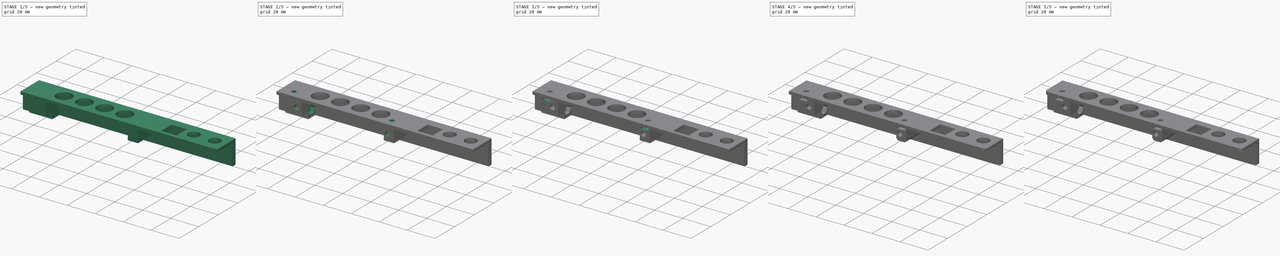
[diagram: build sequence overview — one tinted view per stage of 5, left to right]
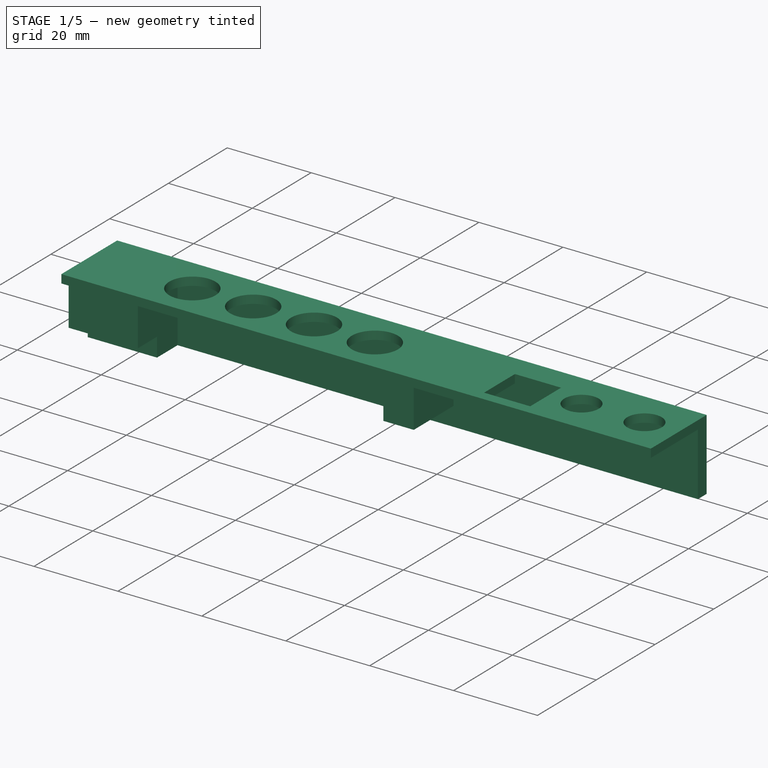
[diagram: stage 1 of 5 — iso view after this stage's code; geometry added in this stage tinted green]
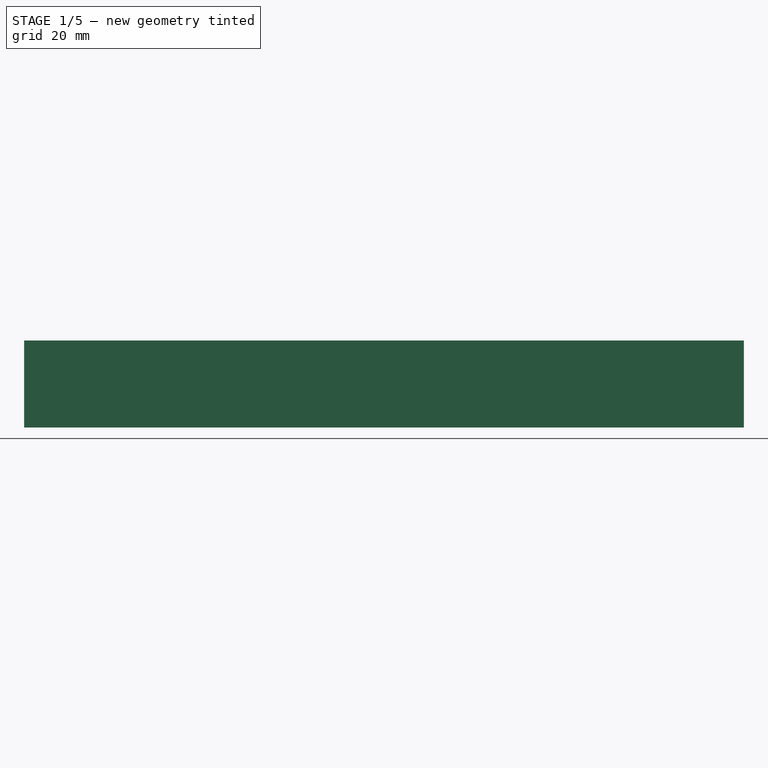
[diagram: stage 1 of 5 — front view after this stage's code; geometry added in this stage tinted green]
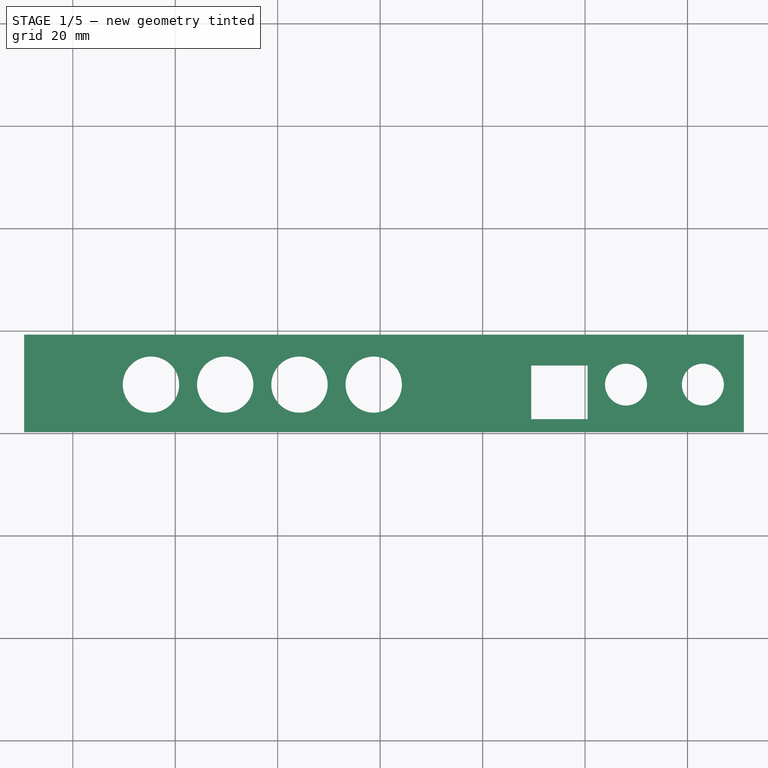
[diagram: stage 1 of 5 — top view after this stage's code; geometry added in this stage tinted green]
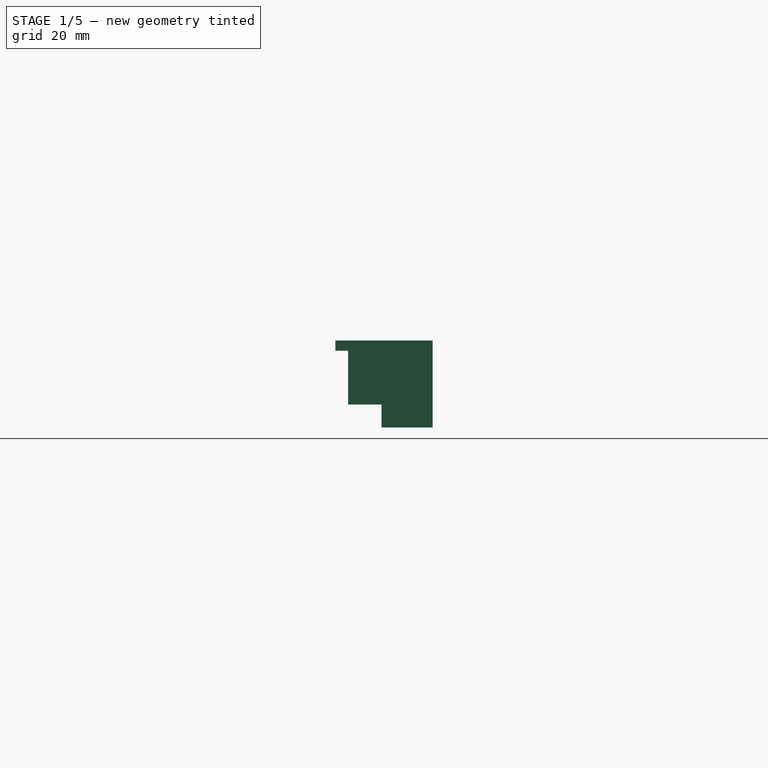
[diagram: stage 1 of 5 — right view after this stage's code; geometry added in this stage tinted green]
FCSTD DOCUMENT  (FreeCAD 0.16R6712 (Git))
Label: juli-bracket
License: All rights reserved
LicenseURL: http://en.wikipedia.org/wiki/All_rights_reserved
objects: Sketcher::SketchObject×12, PartDesign::Pocket×8, PartDesign::Fillet×8, PartDesign::Pad×4, PartDesign::Chamfer×2
note: 46 computed .brp shape members not serialized (recipe doc carries the construction recipe); baked Part::Feature solids carry a one-line shape summary decoded from their .brp

FEATURE [Sketcher::SketchObject] Sketch  label="Holes - sketch"
  sketch-geometry (22):
    g0: LineSegment StartX=0 StartY=19 StartZ=0 EndX=131 EndY=19 EndZ=0
    g1: LineSegment StartX=131 StartY=19 StartZ=0 EndX=131 EndY=0 EndZ=0
    g2: LineSegment StartX=131 StartY=0 StartZ=0 EndX=0 EndY=0 EndZ=0
    g3: LineSegment [constr] StartX=0 StartY=0 StartZ=0 EndX=0 EndY=19 EndZ=0
    g4: Circle CenterX=15.25 CenterY=9.25 CenterZ=0 NormalX=0 NormalY=0 NormalZ=1 Radius=5.5
    g5: Circle CenterX=29.75 CenterY=9.25 CenterZ=0 NormalX=0 NormalY=0 NormalZ=1 Radius=5.5
    g6: Circle CenterX=44.25 CenterY=9.25 CenterZ=0 NormalX=0 NormalY=0 NormalZ=1 Radius=5.5
    g7: Circle CenterX=58.75 CenterY=9.25 CenterZ=0 NormalX=0 NormalY=0 NormalZ=1 Radius=5.5
    g8: Circle CenterX=108 CenterY=9.25 CenterZ=0 NormalX=0 NormalY=0 NormalZ=1 Radius=4.1
    g9: Circle CenterX=123 CenterY=9.25 CenterZ=0 NormalX=0 NormalY=0 NormalZ=1 Radius=4.1
    g10: LineSegment [constr] StartX=58.75 StartY=9.25 StartZ=0 EndX=108 EndY=9.25 EndZ=0
    g11: LineSegment [constr] StartX=108 StartY=9.25 StartZ=0 EndX=123 EndY=9.25 EndZ=0
    g12: LineSegment StartX=89.5 StartY=13 StartZ=0 EndX=100.5 EndY=13 EndZ=0
    g13: LineSegment StartX=100.5 StartY=13 StartZ=0 EndX=100.5 EndY=2.5 EndZ=0
    g14: LineSegment StartX=100.5 StartY=2.5 StartZ=0 EndX=89.5 EndY=2.5 EndZ=0
    g15: LineSegment StartX=89.5 StartY=2.5 StartZ=0 EndX=89.5 EndY=13 EndZ=0
    g16: LineSegment [constr] StartX=15.25 StartY=9.25 StartZ=0 EndX=29.75 EndY=9.25 EndZ=0
    g17: LineSegment [constr] StartX=29.75 StartY=9.25 StartZ=0 EndX=44.25 EndY=9.25 EndZ=0
    g18: LineSegment [constr] StartX=44.25 StartY=9.25 StartZ=0 EndX=58.75 EndY=9.25 EndZ=0
    g19: LineSegment StartX=0 StartY=19 StartZ=0 EndX=-9.5 EndY=19 EndZ=0
    g20: LineSegment StartX=0 StartY=0 StartZ=0 EndX=-9.5 EndY=0 EndZ=0
    g21: LineSegment StartX=-9.5 StartY=19 StartZ=0 EndX=-9.5 EndY=0 EndZ=0
  constraints (59):
    c: Coincident(g0,g1)
    c: Coincident(g1,g2)
    c: Coincident(g2,g3)
    c: Coincident(g3,g0)
    c: Horizontal(g0)
    c: Horizontal(g2)
    c: Vertical(g1)
    c: Vertical(g3)
    c: DistanceX(g0) = 0
    c: DistanceY(g0) = 19
    c: DistanceY(g2) = 0
    c: DistanceX(g0) = 131
    c: Equal(g4,g5)
    c: Equal(g4,g6)
    c: Equal(g4,g7)
    c: Coincident(g10,g7)
    c: Coincident(g10,g8)
    c: Horizontal(g10)
    c: Coincident(g11,g8)
    c: Coincident(g11,g9)
    c: Horizontal(g11)
    c: DistanceX(g4) = 15.25
    c: DistanceY(g4) = 9.25
    c: DistanceX(g4,g5) = 14.5
    c: DistanceX(g5,g6) = 14.5
    c: DistanceX(g6,g7) = 14.5
    c: DistanceX(g8,g9) = 15
    c: DistanceX(g9,g0) = 8
    c: Coincident(g12,g13)
    c: Coincident(g13,g14)
    c: Coincident(g14,g15)
    c: Coincident(g15,g12)
    c: Horizontal(g12)
    c: Horizontal(g14)
    c: Vertical(g13)
    c: Vertical(g15)
    c: DistanceX(g14) = 89.5
    c: DistanceY(g14) = 2.5
    c: DistanceX(g14,g13) = 11
    c: DistanceY(g13,g12) = 10.5
    c: Coincident(g16,g4)
    c: Coincident(g16,g5)
    c: Horizontal(g16)
    c: Coincident(g17,g5)
    c: Coincident(g17,g6)
    c: Horizontal(g17)
    c: Coincident(g18,g6)
    c: Coincident(g18,g7)
    c: Horizontal(g18)
    c: Coincident(g19,g0)
    c: Horizontal(g19)
    c: Coincident(g20,g-1)
    c: PointOnObject(g20,g-1)
    c: Coincident(g21,g19)
    c: Coincident(g21,g20)
    c: Vertical(g21)
    c: Distance(g19) = 9.5
    c: Radius(g8) = 4.1
    c: Radius(g9) = 4.1
FEATURE [PartDesign::Pad] Pad  label="Plate 2mm"
  Length = 2
  Length2 = 100
  Sketch = -> Sketch
  Type = 0
FEATURE [Sketcher::SketchObject] Sketch001
  ExternalGeometry = -> [Pad]
  Placement = pos=(0,0,2) rot=(0,0,1;0rad)
  Support = -> Pad [Face18]
  sketch-geometry (14):
    g0: LineSegment StartX=7 StartY=19 StartZ=0 EndX=7 EndY=2.5 EndZ=0
    g1: LineSegment StartX=7 StartY=2.5 StartZ=0 EndX=-9.5 EndY=2.5 EndZ=0
    g2: LineSegment StartX=-9.5 StartY=19 StartZ=0 EndX=-9.5 EndY=2.5 EndZ=0
    g3: LineSegment StartX=-9.5 StartY=19 StartZ=0 EndX=7 EndY=19 EndZ=0
    g4: LineSegment StartX=63.25 StartY=19 StartZ=0 EndX=72.75 EndY=19 EndZ=0
    g5: LineSegment StartX=72.75 StartY=19 StartZ=0 EndX=72.75 EndY=2.5 EndZ=0
    g6: LineSegment StartX=72.75 StartY=2.5 StartZ=0 EndX=65.5 EndY=2.5 EndZ=0
    g7: LineSegment [constr] StartX=7 StartY=2.5 StartZ=0 EndX=65.5 EndY=2.5 EndZ=0
    g8: LineSegment [constr] StartX=7 StartY=19 StartZ=0 EndX=63.25 EndY=19 EndZ=0
    g9: LineSegment [constr] StartX=68 StartY=25.7107 StartZ=0 EndX=68 EndY=-3.36889 EndZ=0
    g10: LineSegment [constr] StartX=3 StartY=22.9763 StartZ=0 EndX=3 EndY=-10.7359 EndZ=0
    g11: LineSegment StartX=63.25 StartY=19 StartZ=0 EndX=63.25 EndY=16 EndZ=0
    g12: LineSegment StartX=63.25 StartY=16 StartZ=0 EndX=65.5 EndY=16 EndZ=0
    g13: LineSegment StartX=65.5 StartY=16 StartZ=0 EndX=65.5 EndY=2.5 EndZ=0
  constraints (38):
    c: Vertical(g0)
    c: Coincident(g1,g0)
    c: PointOnObject(g1,g-3)
    c: Horizontal(g1)
    c: Coincident(g2,g1)
    c: Coincident(g3,g2)
    c: Coincident(g3,g0)
    c: Horizontal(g3)
    c: DistanceY(g-3,g1) = 2.5
    c: Coincident(g4,g5)
    c: Coincident(g5,g6)
    c: Horizontal(g4)
    c: Horizontal(g6)
    c: Vertical(g5)
    c: Coincident(g7,g0)
    c: Coincident(g7,g6)
    c: Horizontal(g7)
    c: Coincident(g8,g0)
    c: Coincident(g8,g4)
    c: Horizontal(g8)
    c: Vertical(g9)
    c: Vertical(g10)
    c: DistanceX(g-1,g10) = 3
    c: DistanceX(g10,g0) = 4
    c: DistanceX(g10,g9) = 65
    c: DistanceX(g6,g9) = 2.5
    c: DistanceX(g9,g5) = 4.75
    c: DistanceY(g0,g-3) = 0
    c: Coincident(g4,g11)
    c: Vertical(g11)
    c: Coincident(g11,g12)
    c: Horizontal(g12)
    c: Coincident(g12,g13)
    c: Coincident(g13,g6)
    c: Vertical(g13)
    c: Distance(g13) = 13.5
    c: DistanceX(g4,g9) = 4.75
    c: DistanceX(g-3,g-1) = 9.5
FEATURE [PartDesign::Pad] Pad001
  Length = 12.5
  Length2 = 100
  Reversed = true
  Sketch = -> Sketch001
  Type = 0
FEATURE [Sketcher::SketchObject] Sketch002
  ExternalGeometry = -> [Pad001]
  Placement = pos=(0,0,2) rot=(0,0,1;0rad)
  Support = -> Pad001 [Face5]
  sketch-geometry (4):
    g0: LineSegment StartX=-9.5 StartY=19 StartZ=0 EndX=131 EndY=19 EndZ=0
    g1: LineSegment StartX=131 StartY=19 StartZ=0 EndX=131 EndY=16 EndZ=0
    g2: LineSegment StartX=131 StartY=16 StartZ=0 EndX=-9.5 EndY=16 EndZ=0
    g3: LineSegment StartX=-9.5 StartY=16 StartZ=0 EndX=-9.5 EndY=19 EndZ=0
  constraints (10):
    c: Coincident(g-3,g0)
    c: Coincident(g0,g-4)
    c: Coincident(g0,g1)
    c: Vertical(g1)
    c: Coincident(g1,g2)
    c: Horizontal(g2)
    c: Coincident(g2,g3)
    c: Coincident(g3,g0)
    c: Vertical(g3)
    c: Distance(g0,g2) = 3
FEATURE [PartDesign::Pad] Pad002
  Length = 17
  Length2 = 100
  Reversed = true
  Sketch = -> Sketch002
  Type = 0
FEATURE [Sketcher::SketchObject] Sketch003
  ExternalGeometry = -> [Pad002]
  Placement = pos=(0,0,0) rot=(1,0,0;3.14159rad)
  Support = -> Pad002 [Face4]
  sketch-geometry (5):
    g0: LineSegment StartX=-9.5 StartY=-19 StartZ=0 EndX=7 EndY=-19 EndZ=0
    g1: LineSegment StartX=7 StartY=-19 StartZ=0 EndX=7 EndY=-9 EndZ=0
    g2: LineSegment StartX=7 StartY=-9 StartZ=0 EndX=-9.5 EndY=-9 EndZ=0
    g3: LineSegment StartX=-9.5 StartY=-9 StartZ=0 EndX=-9.5 EndY=-19 EndZ=0
    g4: LineSegment [constr] StartX=7 StartY=-9 StartZ=0 EndX=7 EndY=-2.5 EndZ=0
  constraints (13):
    c: Coincident(g0,g1)
    c: Coincident(g1,g2)
    c: Coincident(g2,g3)
    c: Coincident(g3,g0)
    c: Horizontal(g0)
    c: Horizontal(g2)
    c: Vertical(g1)
    c: Vertical(g3)
    c: Coincident(g0,g-3)
    c: DistanceY(g2,g-4) = 6.5
    c: Coincident(g4,g1)
    c: Coincident(g4,g-4)
    c: Vertical(g4)
FEATURE [PartDesign::Pad] Pad003
  Length = 15
  Length2 = 100
  Sketch = -> Sketch003
  Type = 0
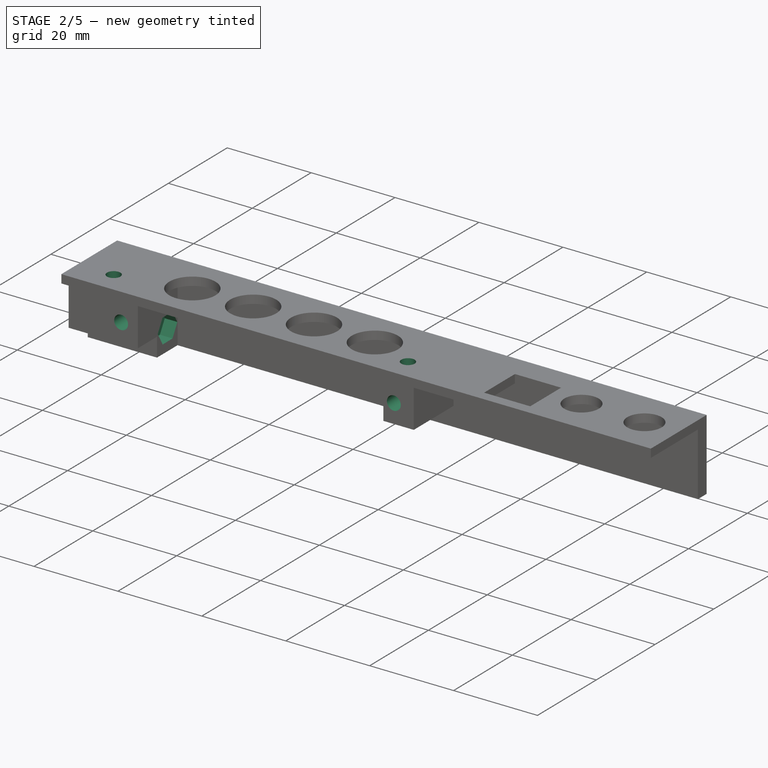
[diagram: stage 2 of 5 — iso view after this stage's code; geometry added in this stage tinted green]
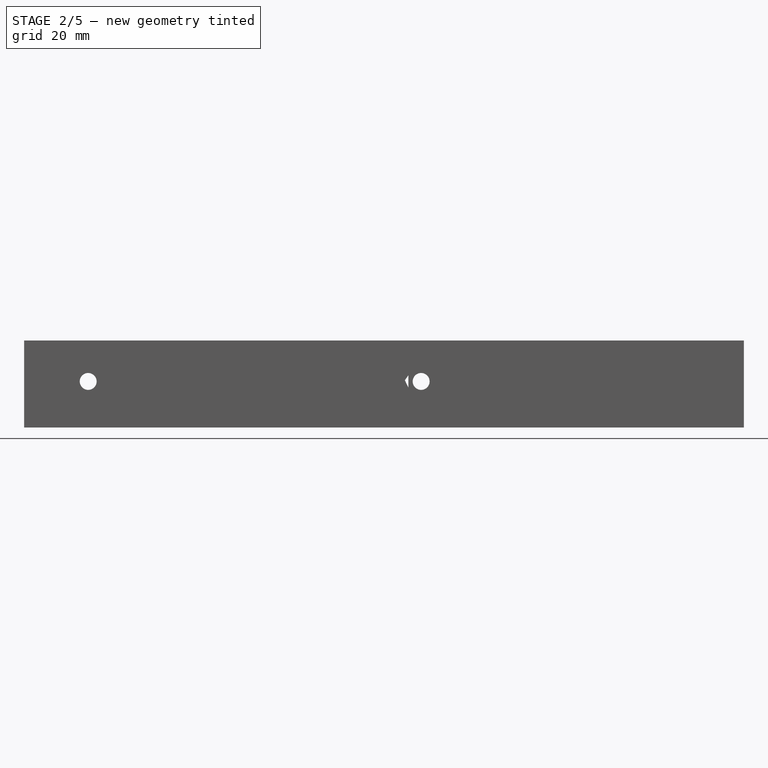
[diagram: stage 2 of 5 — front view after this stage's code; geometry added in this stage tinted green]
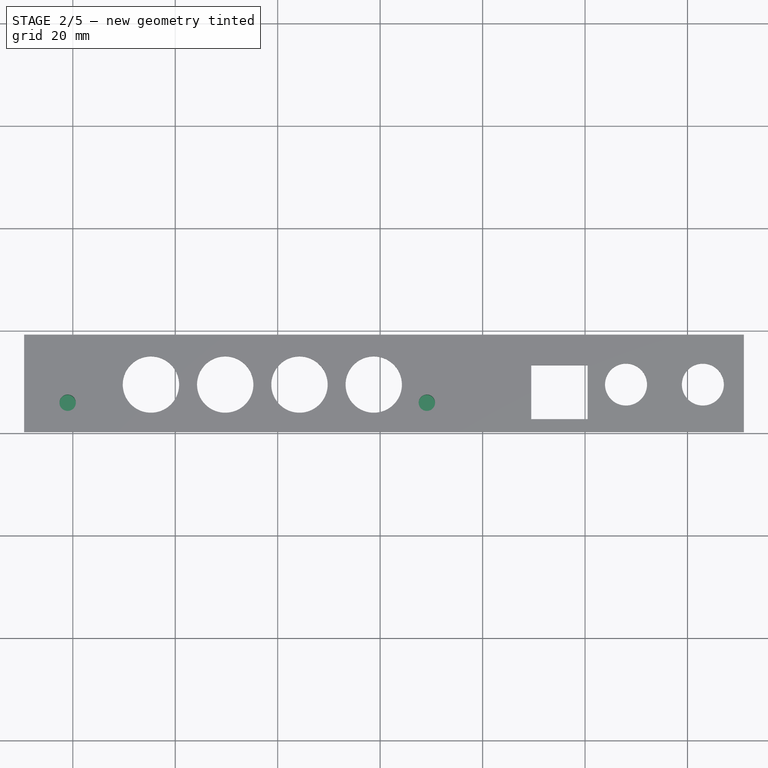
[diagram: stage 2 of 5 — top view after this stage's code; geometry added in this stage tinted green]
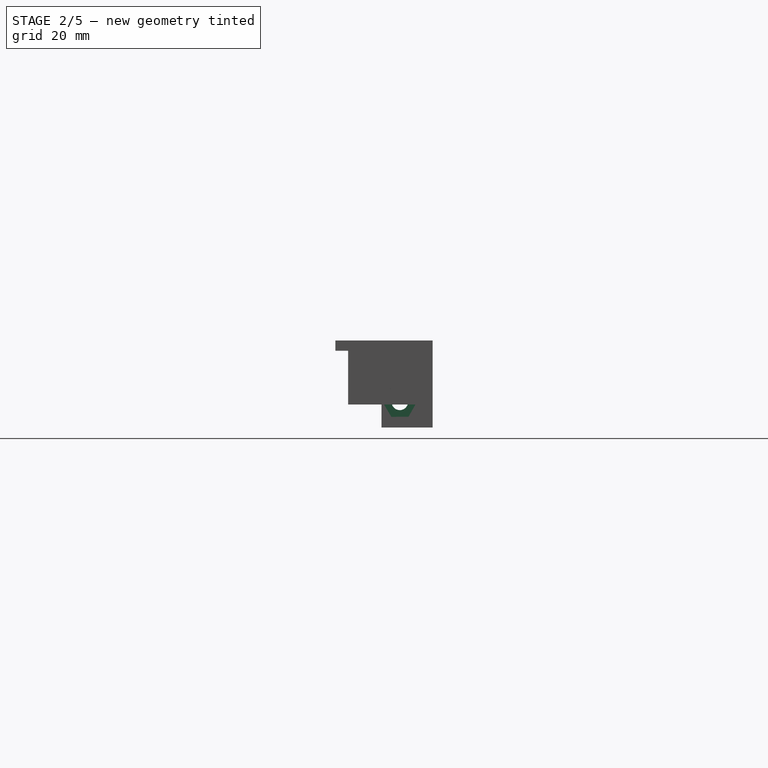
[diagram: stage 2 of 5 — right view after this stage's code; geometry added in this stage tinted green]
FEATURE [Sketcher::SketchObject] Sketch004
  Placement = pos=(0,2.5,0) rot=(1,0,0;1.5708rad)
  Support = -> Pad003 [Face15]
  sketch-geometry (3):
    g0: Circle CenterX=3 CenterY=-6 CenterZ=0 NormalX=0 NormalY=0 NormalZ=1 Radius=1.65
    g1: Circle CenterX=68 CenterY=-6 CenterZ=0 NormalX=0 NormalY=0 NormalZ=1 Radius=1.65
    g2: LineSegment [constr] StartX=3 StartY=-6 StartZ=0 EndX=68 EndY=-6 EndZ=0
  constraints (8):
    c: Radius(g0) = 1.65
    c: DistanceX(g0) = 3
    c: DistanceY(g0) = -6
    c: Radius(g1) = 1.65
    c: DistanceX(g0,g1) = 65
    c: Coincident(g2,g0)
    c: Coincident(g2,g1)
    c: Horizontal(g2)
FEATURE [PartDesign::Pocket] Pocket
  Length = 20
  Sketch = -> Sketch004
  Type = 0
FEATURE [Sketcher::SketchObject] Sketch005
  ExternalGeometry = -> [Pocket]
  Placement = pos=(0,19,0) rot=(0,0.707107,0.707107;3.14159rad)
  Support = -> Pocket [Face50]
  sketch-geometry (14):
    g0: LineSegment StartX=-4.803 StartY=-3.38609 StartZ=0 EndX=-6.16521 EndY=-6.25449 EndZ=0
    g1: LineSegment StartX=-6.16521 StartY=-6.25449 StartZ=0 EndX=-4.36222 EndY=-8.8684 EndZ=0
    g2: LineSegment StartX=-4.36222 StartY=-8.8684 StartZ=0 EndX=-1.197 EndY=-8.61391 EndZ=0
    g3: LineSegment StartX=-1.197 StartY=-8.61391 StartZ=0 EndX=0.165213 EndY=-5.74551 EndZ=0
    g4: LineSegment StartX=0.165213 StartY=-5.74551 StartZ=0 EndX=-1.63778 EndY=-3.1316 EndZ=0
    g5: LineSegment StartX=-1.63778 StartY=-3.1316 StartZ=0 EndX=-4.803 EndY=-3.38609 EndZ=0
    g6: Circle [constr] CenterX=-3 CenterY=-6 CenterZ=0 NormalX=0 NormalY=0 NormalZ=1 Radius=3.17543
    g7: LineSegment StartX=-64.8318 StartY=-5.78546 StartZ=0 EndX=-66.6017 EndY=-3.14901 EndZ=0
    g8: LineSegment StartX=-66.6017 StartY=-3.14901 StartZ=0 EndX=-69.7699 EndY=-3.36355 EndZ=0
    g9: LineSegment StartX=-69.7699 StartY=-3.36355 StartZ=0 EndX=-71.1682 EndY=-6.21454 EndZ=0
    g10: LineSegment StartX=-71.1682 StartY=-6.21454 StartZ=0 EndX=-69.3983 EndY=-8.85099 EndZ=0
    g11: LineSegment StartX=-69.3983 StartY=-8.85099 StartZ=0 EndX=-66.2301 EndY=-8.63645 EndZ=0
    g12: LineSegment StartX=-66.2301 StartY=-8.63645 StartZ=0 EndX=-64.8318 EndY=-5.78546 EndZ=0
    g13: Circle [constr] CenterX=-68 CenterY=-6 CenterZ=0 NormalX=0 NormalY=0 NormalZ=1 Radius=3.17543
  constraints (30):
    c: Coincident(g0,g1)
    c: Coincident(g1,g2)
    c: Coincident(g2,g3)
    c: Coincident(g3,g4)
    c: Coincident(g4,g5)
    c: Coincident(g5,g0)
    c: Equal(g0, g1-g5) x5
    c: PointOnObject(g0,g6)
    c: PointOnObject(g1,g6)
    c: PointOnObject(g2,g6)
    c: PointOnObject(g3,g6)
    c: PointOnObject(g4,g6)
    c: PointOnObject(g5,g6)
    c: Coincident(g6,g-4)
    c: Coincident(g7,g8)
    c: Coincident(g8,g9)
    c: Coincident(g9,g10)
    c: Coincident(g10,g11)
    c: Coincident(g11,g12)
    c: Coincident(g12,g7)
    c: Equal(g7, g8-g12) x5
    c: PointOnObject(g7,g13)
    c: PointOnObject(g8,g13)
    c: PointOnObject(g9,g13)
    c: PointOnObject(g10,g13)
    c: PointOnObject(g11,g13)
    c: PointOnObject(g12,g13)
    c: Coincident(g13,g-3)
    c: Distance(g8,g10) = 5.5
    c: Distance(g0,g1) = 5.5
FEATURE [PartDesign::Pocket] Pocket001
  Length = 3.5
  Sketch = -> Sketch005
  Type = 0
FEATURE [Sketcher::SketchObject] Sketch006
  Placement = pos=(-9.5,0,0) rot=(0.57735,-0.57735,-0.57735;2.0944rad)
  Support = -> Pocket001 [Face33]
  sketch-geometry (1):
    g0: Circle CenterX=-12.5876 CenterY=-10 CenterZ=0 NormalX=0 NormalY=0 NormalZ=1 Radius=1.6
  constraints (2):
    c: Radius(g0) = 1.6
    c: DistanceY(g0,g-1) = 10
FEATURE [PartDesign::Pocket] Pocket002
  Length = 20
  Sketch = -> Sketch006
  Type = 0
FEATURE [Sketcher::SketchObject] Sketch007
  ExternalGeometry = -> [Pocket002]
  Placement = pos=(7,0,0) rot=(0.57735,0.57735,0.57735;2.0944rad)
  Support = -> Pocket002 [Face10]
  sketch-geometry (7):
    g0: LineSegment StartX=14.2859 StartY=-12.886 StartZ=0 EndX=15.9361 EndY=-9.97223 EndZ=0
    g1: LineSegment StartX=15.9361 StartY=-9.97223 StartZ=0 EndX=14.2378 EndY=-7.08622 EndZ=0
    g2: LineSegment StartX=14.2378 StartY=-7.08622 StartZ=0 EndX=10.8893 EndY=-7.11398 EndZ=0
    g3: LineSegment StartX=10.8893 StartY=-7.11398 StartZ=0 EndX=9.23904 EndY=-10.0278 EndZ=0
    g4: LineSegment StartX=9.23904 StartY=-10.0278 StartZ=0 EndX=10.9373 EndY=-12.9138 EndZ=0
    g5: LineSegment StartX=10.9373 StartY=-12.9138 StartZ=0 EndX=14.2859 EndY=-12.886 EndZ=0
    g6: Circle [constr] CenterX=12.5876 CenterY=-10 CenterZ=0 NormalX=0 NormalY=0 NormalZ=1 Radius=3.34863
  constraints (15):
    c: Coincident(g0,g1)
    c: Coincident(g1,g2)
    c: Coincident(g2,g3)
    c: Coincident(g3,g4)
    c: Coincident(g4,g5)
    c: Coincident(g5,g0)
    c: Equal(g0, g1-g5) x5
    c: PointOnObject(g0,g6)
    c: PointOnObject(g1,g6)
    c: PointOnObject(g2,g6)
    c: PointOnObject(g3,g6)
    c: PointOnObject(g4,g6)
    c: PointOnObject(g5,g6)
    c: Coincident(g6,g-3)
    c: Distance(g2,g4) = 5.8
FEATURE [PartDesign::Pocket] Pocket003
  Length = 3
  Sketch = -> Sketch007
  Type = 0
FEATURE [Sketcher::SketchObject] Sketch008
  ExternalGeometry = -> [Pocket003]
  Placement = pos=(0,0,2) rot=(0,0,1;0rad)
  Support = -> Pocket003 [Face5]
  sketch-geometry (3):
    g0: Circle CenterX=69.12 CenterY=5.7 CenterZ=0 NormalX=0 NormalY=0 NormalZ=1 Radius=1.6
    g1: Circle CenterX=-1.01165 CenterY=5.7 CenterZ=0 NormalX=0 NormalY=0 NormalZ=1 Radius=1.6
    g2: LineSegment [constr] StartX=69.12 StartY=5.7 StartZ=0 EndX=-1.01165 EndY=5.7 EndZ=0
  constraints (7):
    c: Radius(g0) = 1.6
    c: DistanceX(g-3,g0) = 3.62
    c: DistanceY(g-4,g0) = 3.2
    c: Coincident(g2,g0)
    c: Coincident(g2,g1)
    c: Horizontal(g2)
    c: Radius(g1) = 1.6
FEATURE [PartDesign::Pocket] Pocket004
  Length = 5
  Sketch = -> Sketch008
  Type = 0
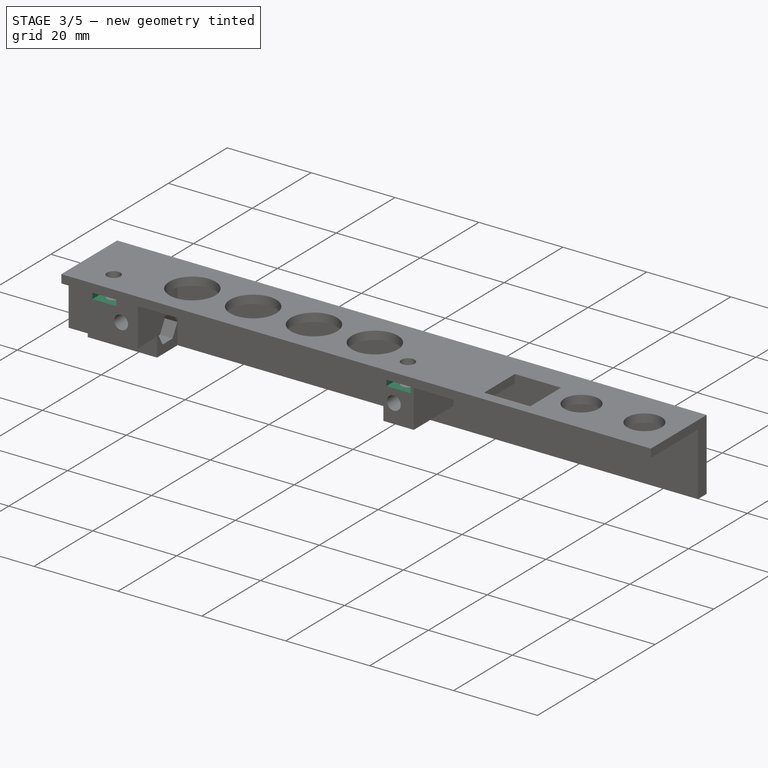
[diagram: stage 3 of 5 — iso view after this stage's code; geometry added in this stage tinted green]
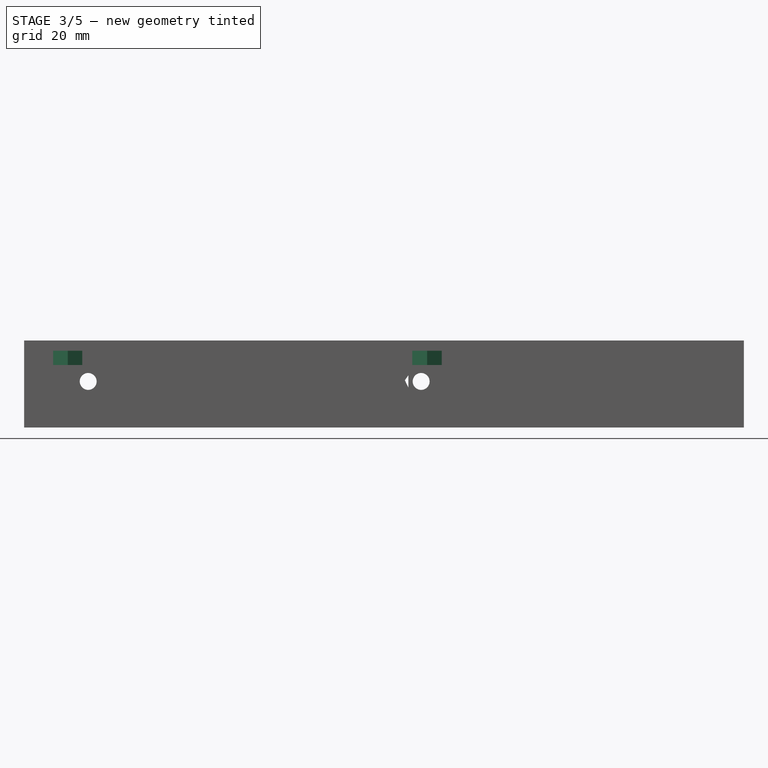
[diagram: stage 3 of 5 — front view after this stage's code; geometry added in this stage tinted green]
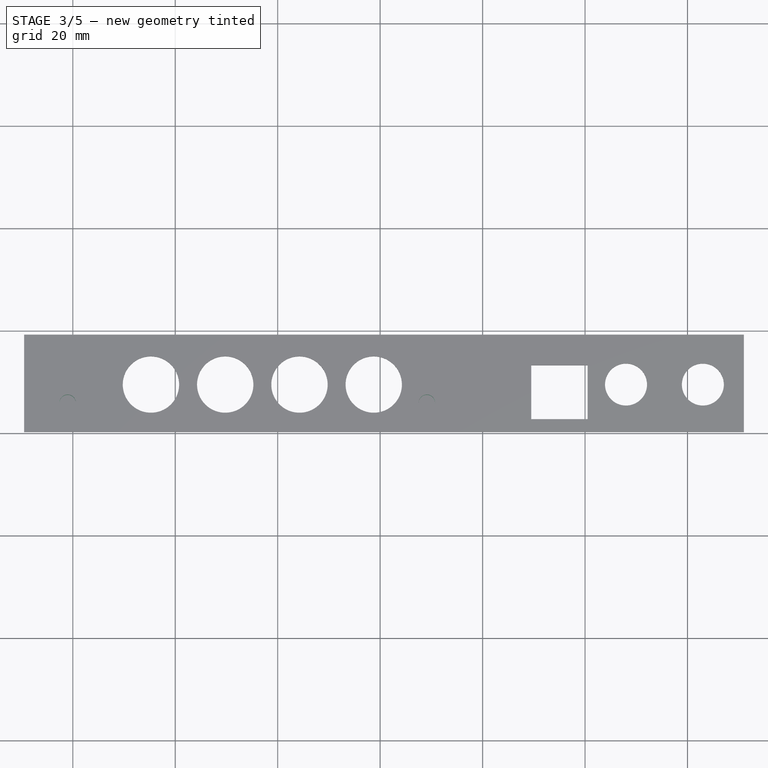
[diagram: stage 3 of 5 — top view after this stage's code; geometry added in this stage tinted green]
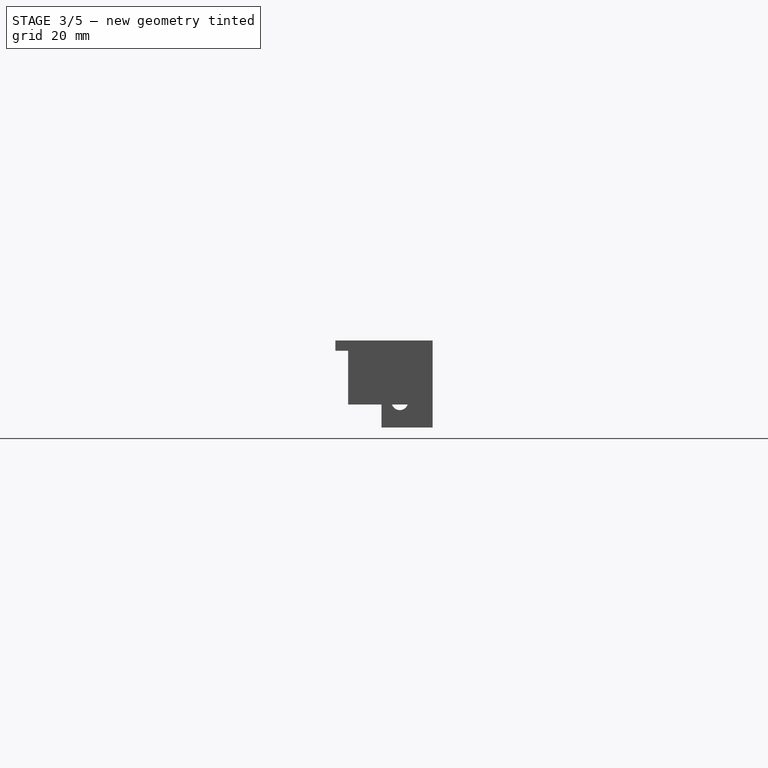
[diagram: stage 3 of 5 — right view after this stage's code; geometry added in this stage tinted green]
FEATURE [Sketcher::SketchObject] Sketch009
  ExternalGeometry = -> [Pocket004]
  Placement = pos=(0,0,0) rot=(1,0,0;3.14159rad)
  Support = -> Pocket004 [Face4]
  sketch-geometry (6):
    g0: LineSegment StartX=66.2595 StartY=-7.72363 StartZ=0 EndX=69.1634 EndY=-9.35006 EndZ=0
    g1: LineSegment StartX=69.1634 StartY=-9.35006 StartZ=0 EndX=72.0239 EndY=-7.64844 EndZ=0
    g2: Circle [constr] CenterX=69.12 CenterY=-6.02202 CenterZ=0 NormalX=0 NormalY=0 NormalZ=1 Radius=3.32832
    g3: LineSegment StartX=66.2595 StartY=-7.72363 StartZ=0 EndX=66.2595 EndY=-2.0597 EndZ=0
    g4: LineSegment StartX=72.0239 StartY=-7.64844 StartZ=0 EndX=72.0239 EndY=-2.0597 EndZ=0
    g5: LineSegment StartX=66.2595 StartY=-2.0597 StartZ=0 EndX=72.0239 EndY=-2.0597 EndZ=0
  constraints (11):
    c: Coincident(g0,g1)
    c: PointOnObject(g0,g2)
    c: PointOnObject(g0,g2)
    c: PointOnObject(g1,g2)
    c: Coincident(g3,g0)
    c: Vertical(g3)
    c: Coincident(g4,g1)
    c: Vertical(g4)
    c: Coincident(g5,g3)
    c: Coincident(g5,g4)
    c: Horizontal(g5)
FEATURE [PartDesign::Pocket] Pocket005
  Length = 2.8
  Reversed = true
  Sketch = -> Sketch009
  Type = 0
FEATURE [Sketcher::SketchObject] Sketch010
  ExternalGeometry = -> [Pocket005]
  Placement = pos=(0,0,0) rot=(1,0,0;3.14159rad)
  Support = -> Pocket005 [Face4]
  sketch-geometry (6):
    g0: LineSegment StartX=-3.83775 StartY=-7.81118 StartZ=0 EndX=-0.999162 EndY=-9.40988 EndZ=0
    g1: LineSegment StartX=-0.999162 StartY=-9.40988 StartZ=0 EndX=1.84578 EndY=-7.75793 EndZ=0
    g2: Circle [constr] CenterX=-1.01165 CenterY=-6.11267 CenterZ=0 NormalX=0 NormalY=0 NormalZ=1 Radius=3.29724
    g3: LineSegment StartX=-3.83775 StartY=-7.81118 StartZ=0 EndX=-3.83775 EndY=-1.91964 EndZ=0
    g4: LineSegment StartX=1.84578 StartY=-7.75793 StartZ=0 EndX=1.84578 EndY=-1.91964 EndZ=0
    g5: LineSegment StartX=-3.83775 StartY=-1.91964 StartZ=0 EndX=1.84578 EndY=-1.91964 EndZ=0
  constraints (11):
    c: Coincident(g0,g1)
    c: PointOnObject(g0,g2)
    c: PointOnObject(g0,g2)
    c: PointOnObject(g1,g2)
    c: Coincident(g3,g0)
    c: Vertical(g3)
    c: Coincident(g4,g1)
    c: Vertical(g4)
    c: Coincident(g5,g3)
    c: Coincident(g5,g4)
    c: Horizontal(g5)
FEATURE [PartDesign::Pocket] Pocket006
  Length = 2.8
  Reversed = true
  Sketch = -> Sketch010
  Type = 0
FEATURE [PartDesign::Chamfer] Chamfer
  Base = -> Pocket006 [Edge157]
  Size = 0.8
FEATURE [PartDesign::Chamfer] Chamfer001
  Base = -> Chamfer [Edge194]
  Size = 1
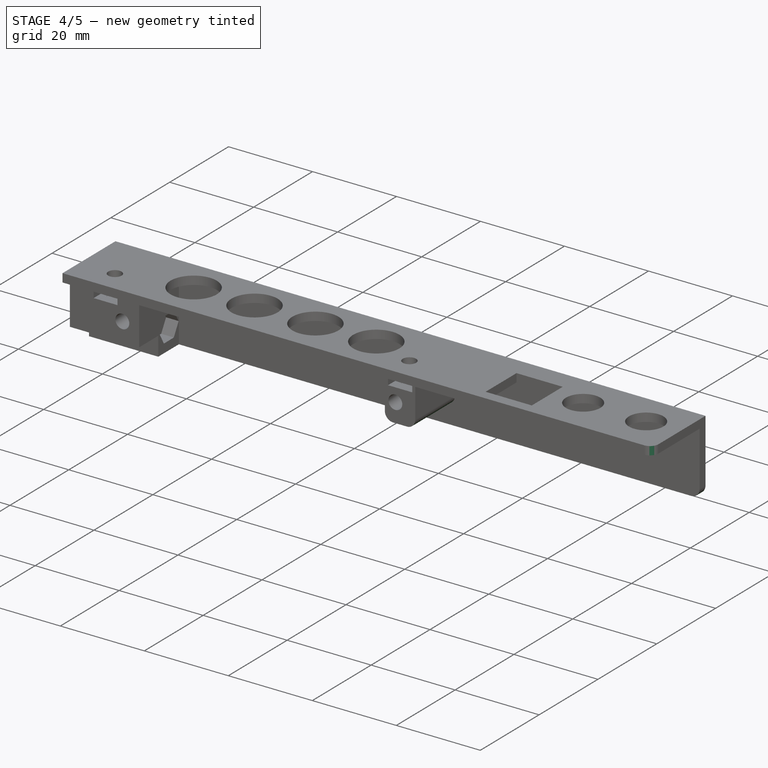
[diagram: stage 4 of 5 — iso view after this stage's code; geometry added in this stage tinted green]
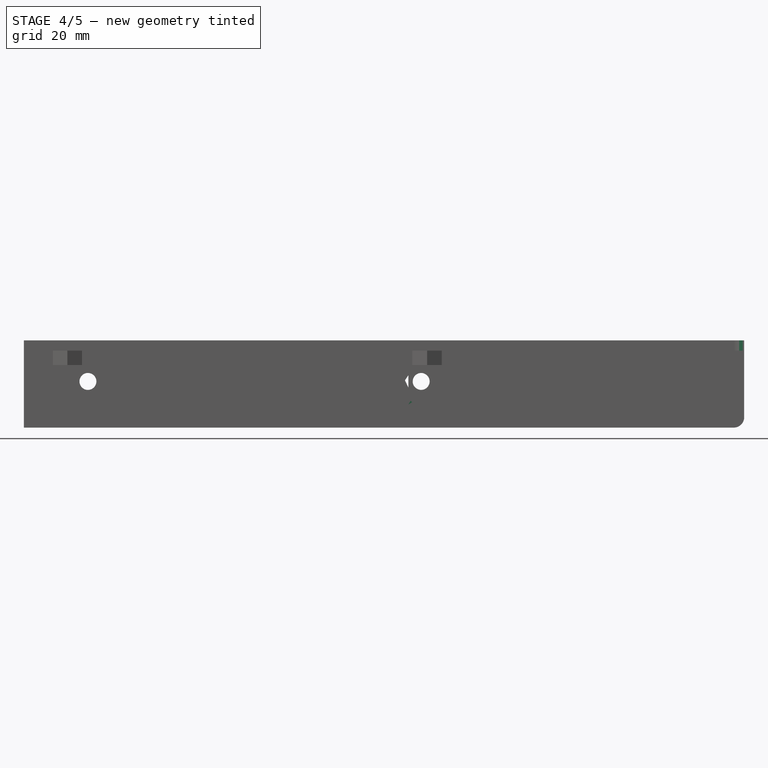
[diagram: stage 4 of 5 — front view after this stage's code; geometry added in this stage tinted green]
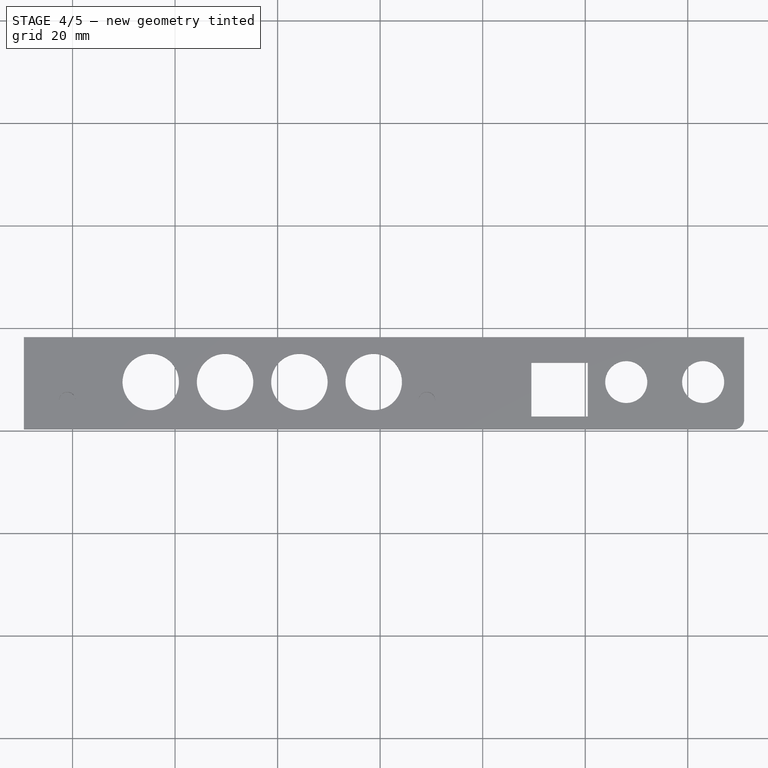
[diagram: stage 4 of 5 — top view after this stage's code; geometry added in this stage tinted green]
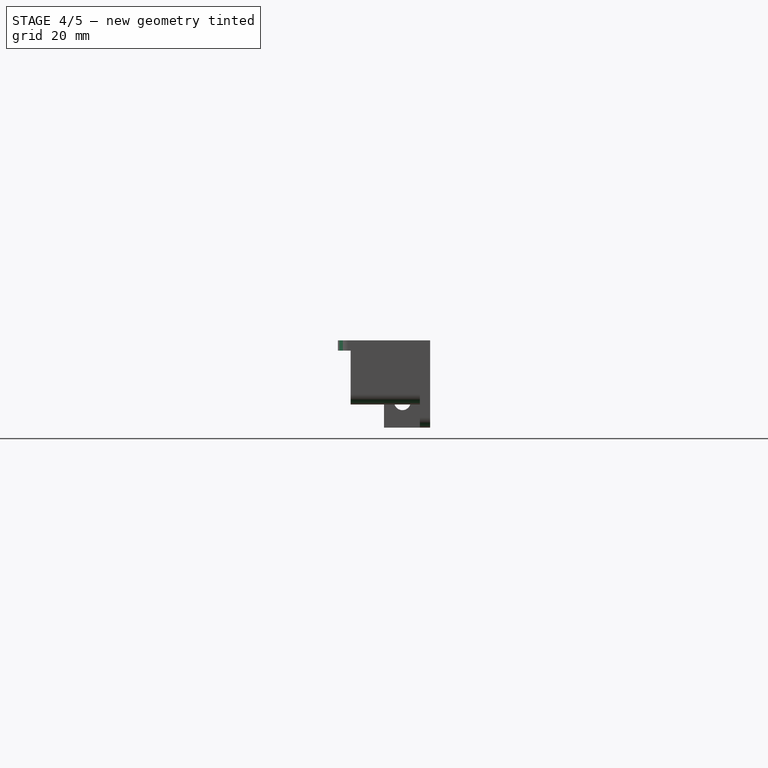
[diagram: stage 4 of 5 — right view after this stage's code; geometry added in this stage tinted green]
FEATURE [Sketcher::SketchObject] Sketch011
  Placement = pos=(0,19,0) rot=(0,0.707107,0.707107;3.14159rad)
  Support = -> Chamfer001 [Face81]
  sketch-geometry (4):
    g0: LineSegment StartX=-131.434 StartY=2.71846 StartZ=0 EndX=10.8308 EndY=2.71846 EndZ=0
    g1: LineSegment StartX=10.8308 StartY=2.71846 StartZ=0 EndX=10.8308 EndY=-16.345 EndZ=0
    g2: LineSegment StartX=10.8308 StartY=-16.345 StartZ=0 EndX=-131.434 EndY=-16.345 EndZ=0
    g3: LineSegment StartX=-131.434 StartY=-16.345 StartZ=0 EndX=-131.434 EndY=2.71846 EndZ=0
  constraints (8):
    c: Coincident(g0,g1)
    c: Coincident(g1,g2)
    c: Coincident(g2,g3)
    c: Coincident(g3,g0)
    c: Horizontal(g0)
    c: Horizontal(g2)
    c: Vertical(g1)
    c: Vertical(g3)
FEATURE [PartDesign::Pocket] Pocket007
  Length = 1
  Sketch = -> Sketch011
  Type = 0
FEATURE [PartDesign::Fillet] Fillet
  Base = -> Pocket007 [Edge133]
  Radius = 2
FEATURE [PartDesign::Fillet] Fillet001
  Base = -> Fillet [Edge46]
  Radius = 2
FEATURE [PartDesign::Fillet] Fillet002
  Base = -> Fillet001 [Edge93]
  Radius = 2
FEATURE [PartDesign::Fillet] Fillet003
  Base = -> Fillet002 [Edge128]
  Radius = 2
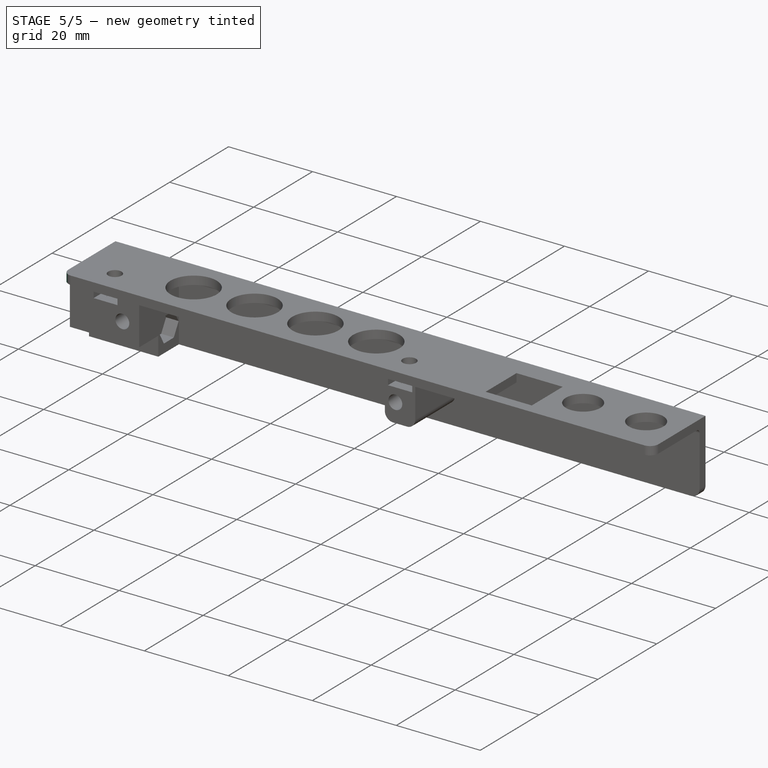
[diagram: stage 5 of 5 — iso view after this stage's code; geometry added in this stage tinted green]
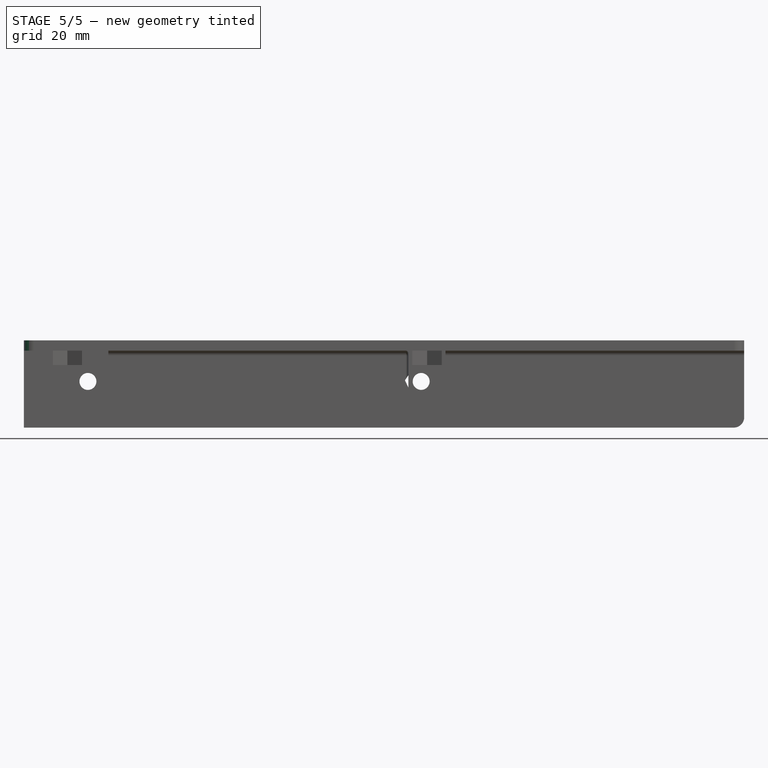
[diagram: stage 5 of 5 — front view after this stage's code; geometry added in this stage tinted green]
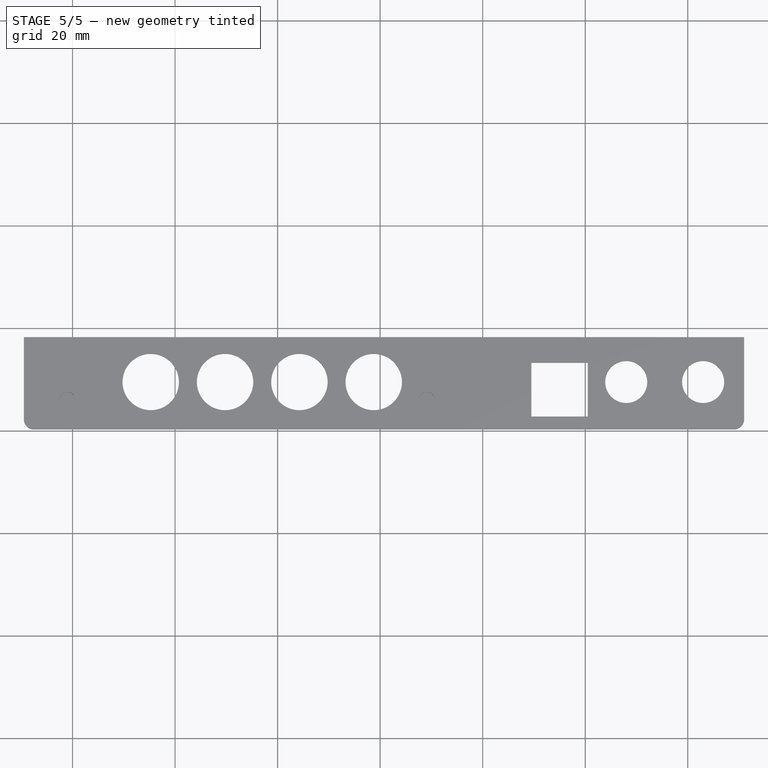
[diagram: stage 5 of 5 — top view after this stage's code; geometry added in this stage tinted green]
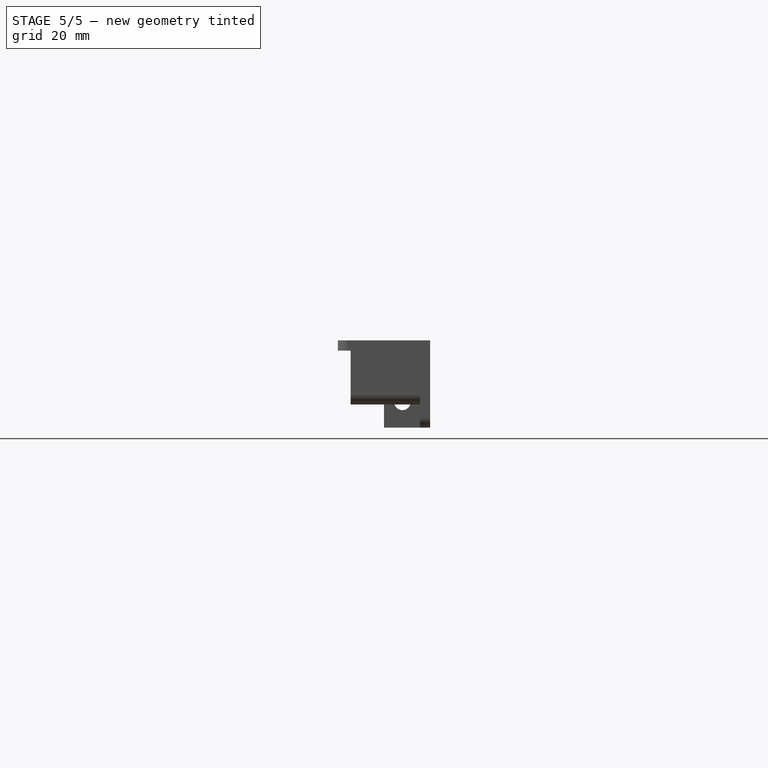
[diagram: stage 5 of 5 — right view after this stage's code; geometry added in this stage tinted green]
FEATURE [PartDesign::Fillet] Fillet004
  Base = -> Fillet003 [Edge103]
  Radius = 2
FEATURE [PartDesign::Fillet] Fillet005
  Base = -> Fillet004 [Edge9]
  Radius = 1
FEATURE [PartDesign::Fillet] Fillet006
  Base = -> Fillet005 [Edge20]
  Radius = 1
FEATURE [PartDesign::Fillet] Fillet007
  Base = -> Fillet006 [Edge1]
  Radius = 0.5
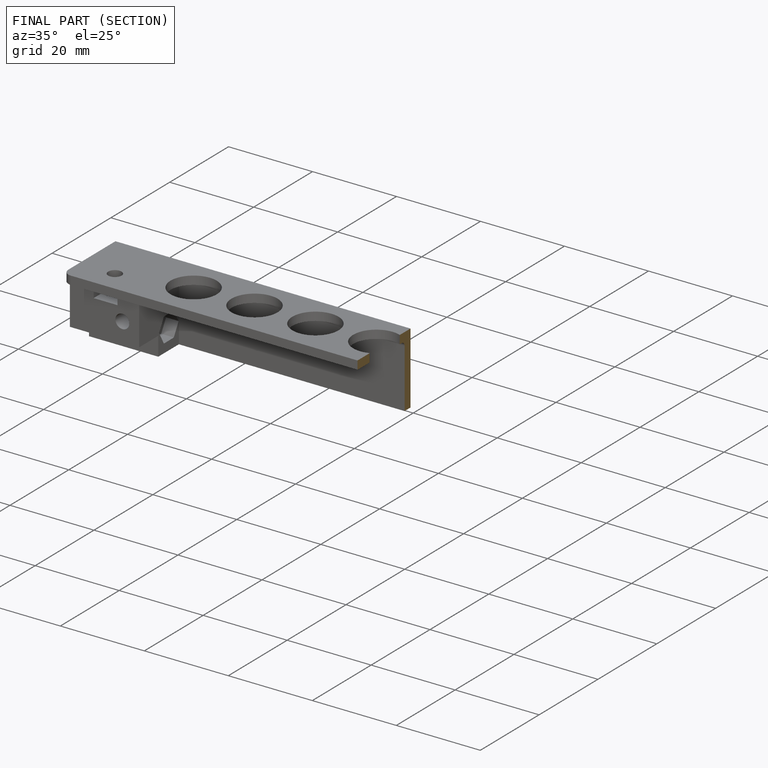
[diagram: finished part — half-section view (interior)]
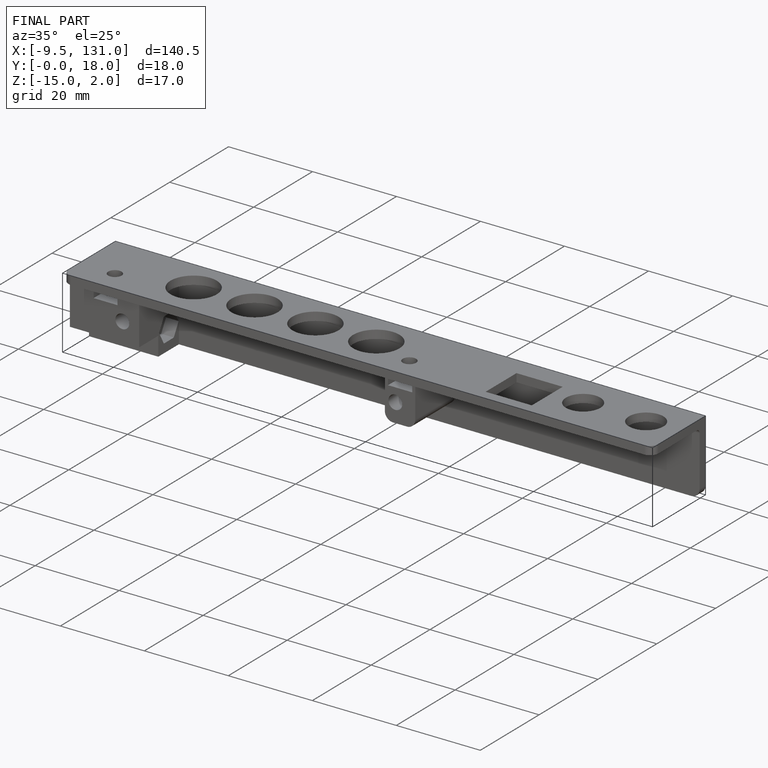
[diagram: finished part — iso view with bounding-box wireframe]
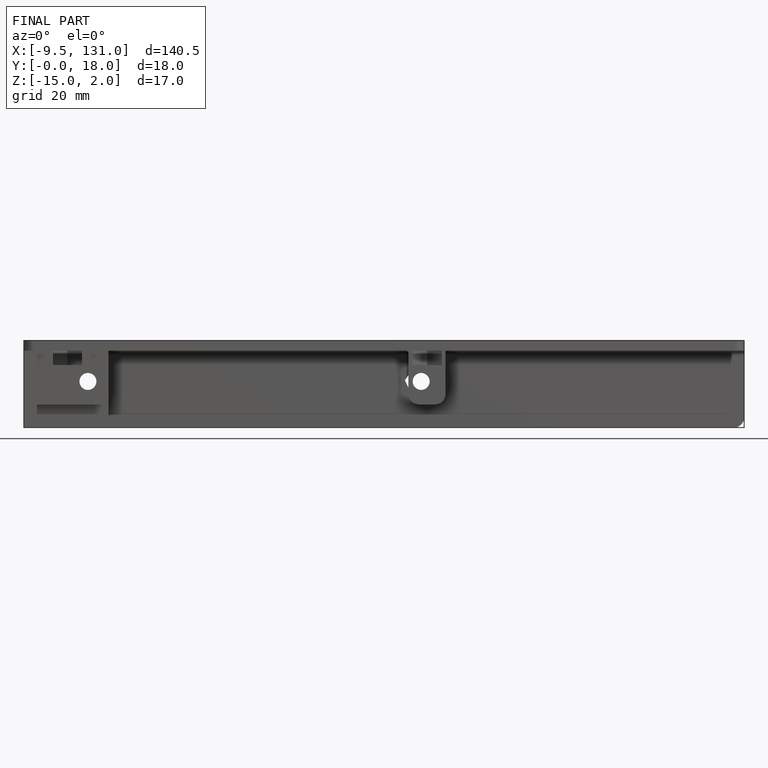
[diagram: finished part — front view with bounding-box wireframe]
